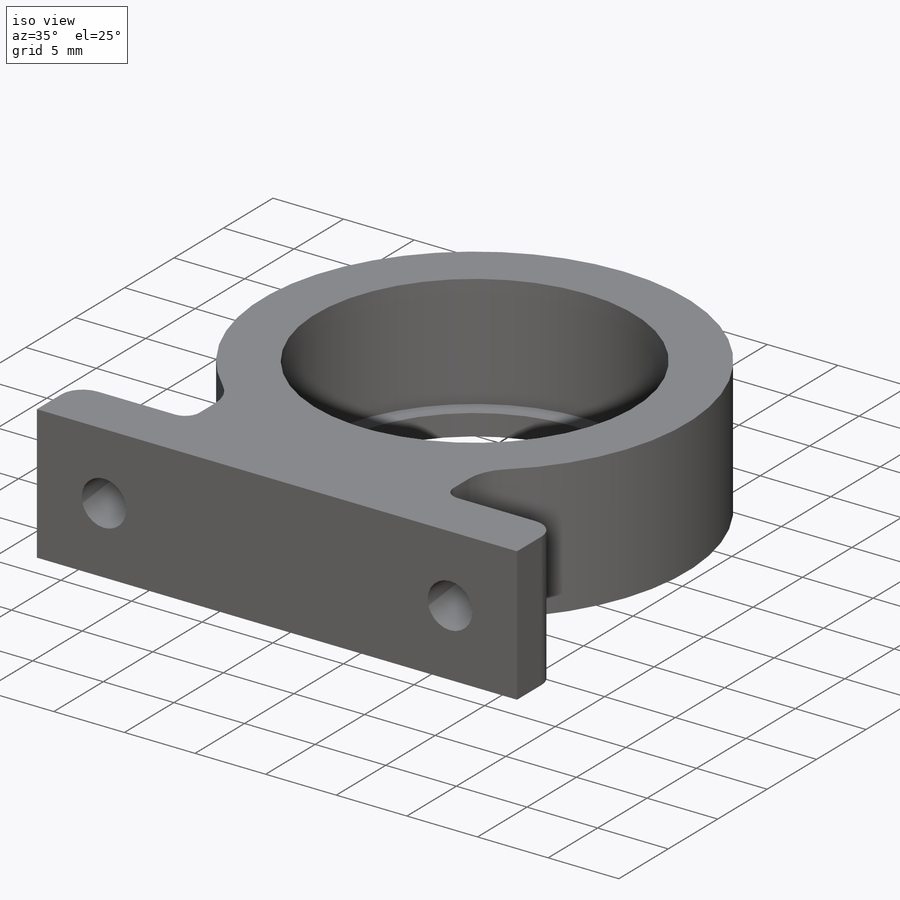
[diagram: iso view]
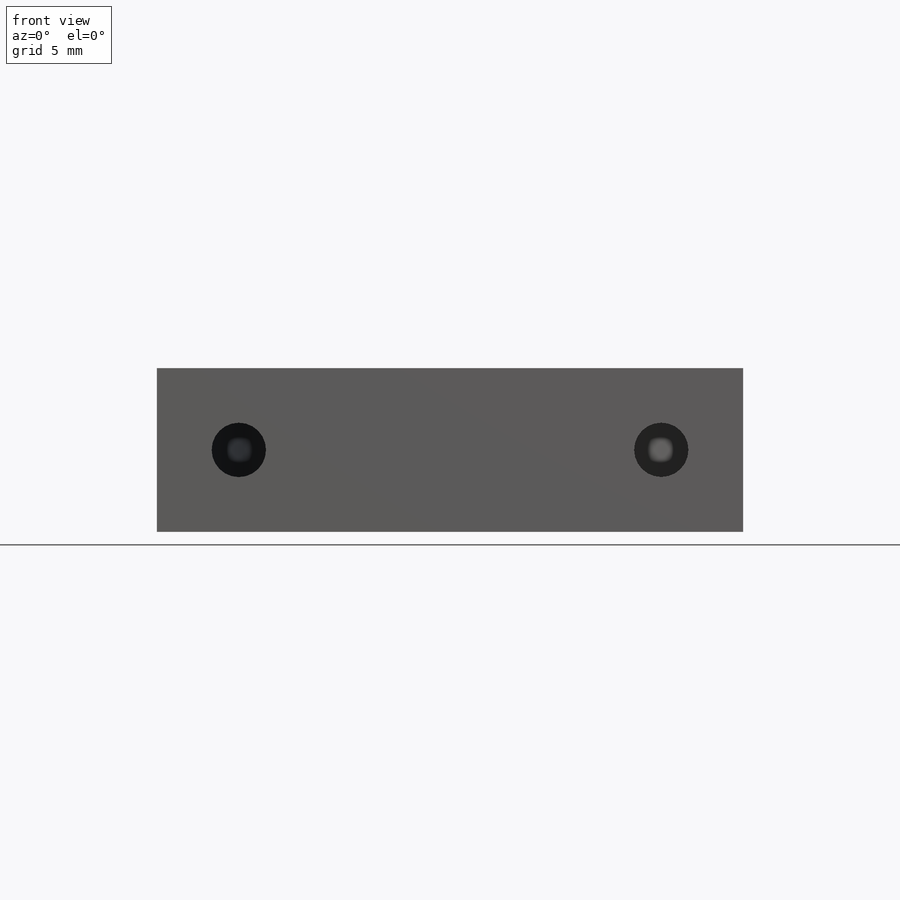
[diagram: front view]
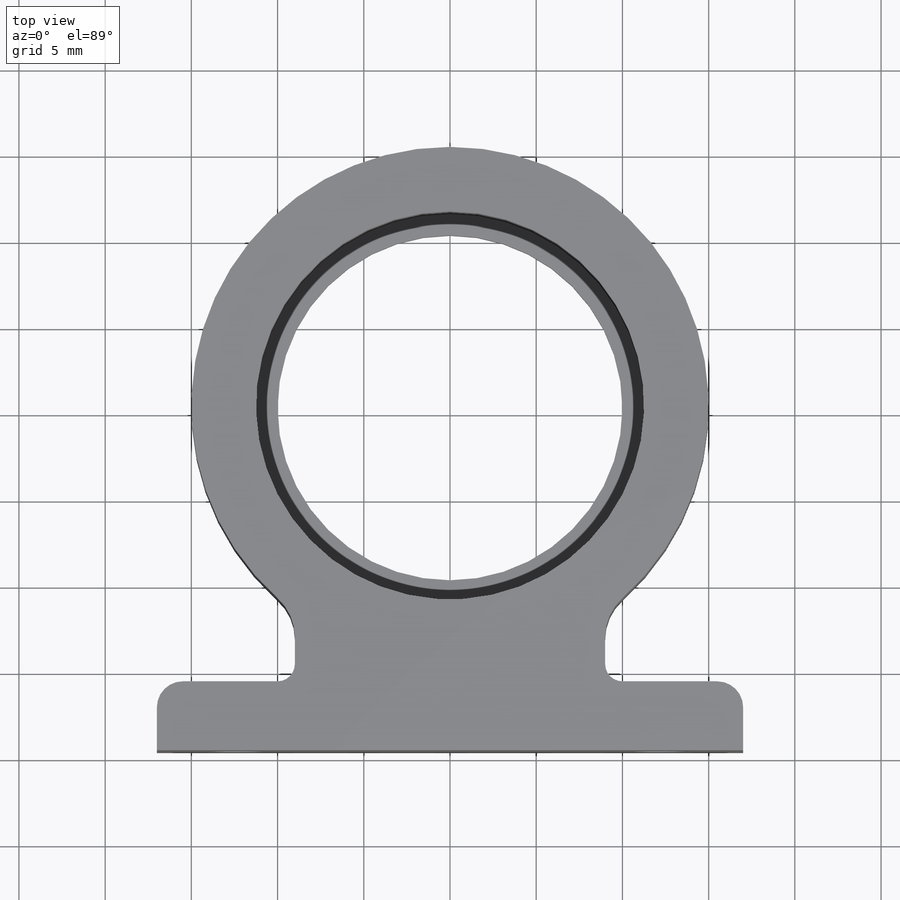
[diagram: top view]
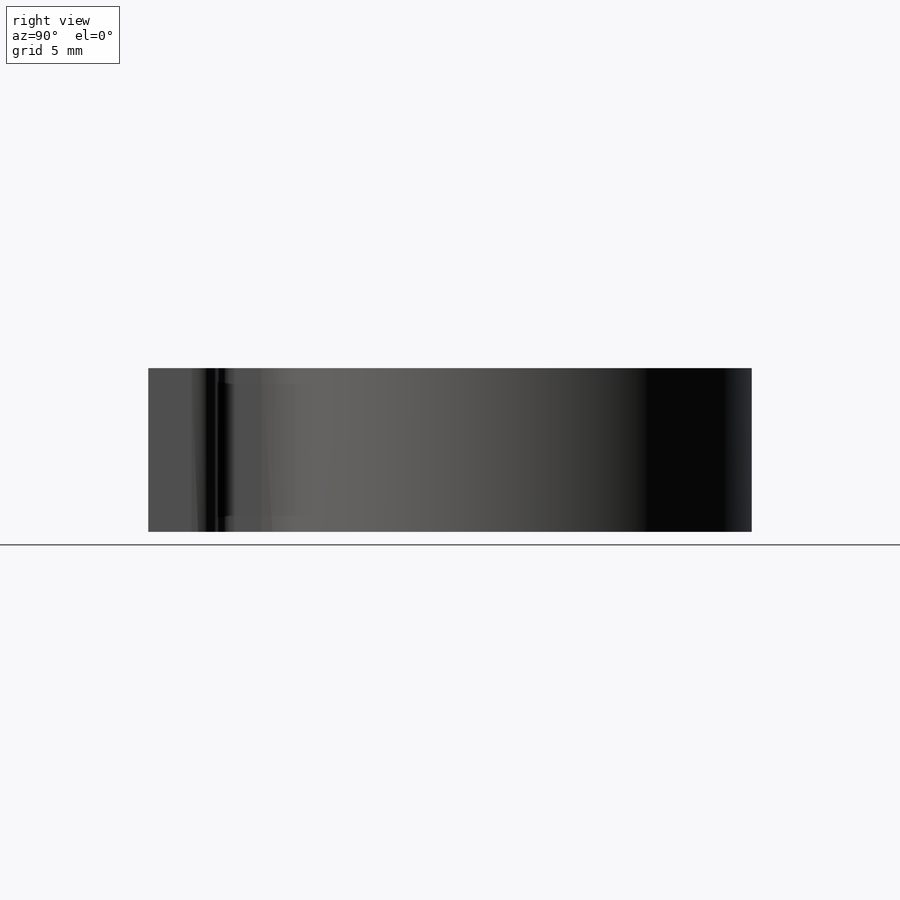
[diagram: right view]
SOLIDWORKS PART (.sldprt)
format: sldprt  version: not decoded by parser v0  size: 232,448 bytes
history: native  units: mm
features: sketch x4, extrude x2, cut_extrude x2, material x1, fillet x1 (+13 scaffold rows collapsed)
feature tree (23):
  scaffold x13  (default folders/planes/origin — collapsed)
  material  "Material <not specified>"
  sketch  "Sketch3"  dims[c1.D3=22.5mm c1.D4=30.0mm c1.D7=1.5mm c1.D1=34.0mm c1.D2=4.0mm c1.D5=20.0mm c1.D6=14.0mm c1.D8=17.0mm c1.D9=9.0mm c1.D10=8.0mm c1.D11=~8.246211mm c1.D12=90.0deg c2.D11=~8.246211mm c2.D12=90.0deg c3.D11=9.0mm c3.D6=8.0mm c3.D10=8.0mm]
  extrude  "Boss-Extrude5"  Depth=9.5mm
  sketch  "Sketch11"  dims[D1=22.5mm D2=20.0mm]
  extrude  "Boss-Extrude6"  Depth=1.5mm
  sketch  "Sketch12"  dims[D1=3.15mm]
  cut_extrude  "Cut-Extrude3"  [1 undecoded]
  sketch  "Sketch13"  dims[D1=3.15mm]
  cut_extrude  "Cut-Extrude4"  [1 undecoded]
  fillet  "Fillet1"  Radius=3mm
decode coverage: 7 of 9 modeling features carry decoded parameters
note: ~ marks probable driven/reference dimensions
note: 2 parameter values undecoded
note: suppression state not decoded; provenance and decode notes live in map.json
